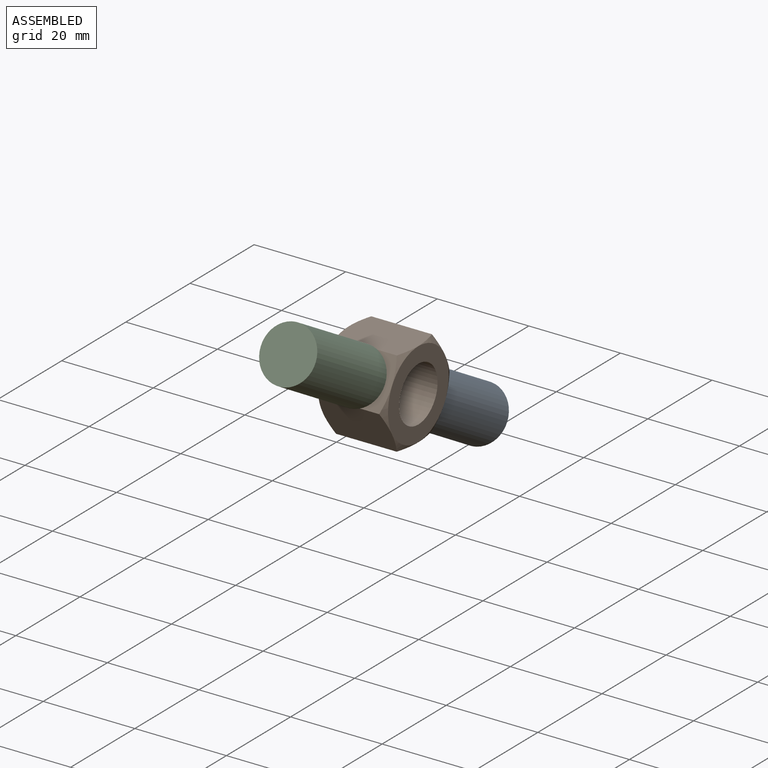
[diagram: assembled view]
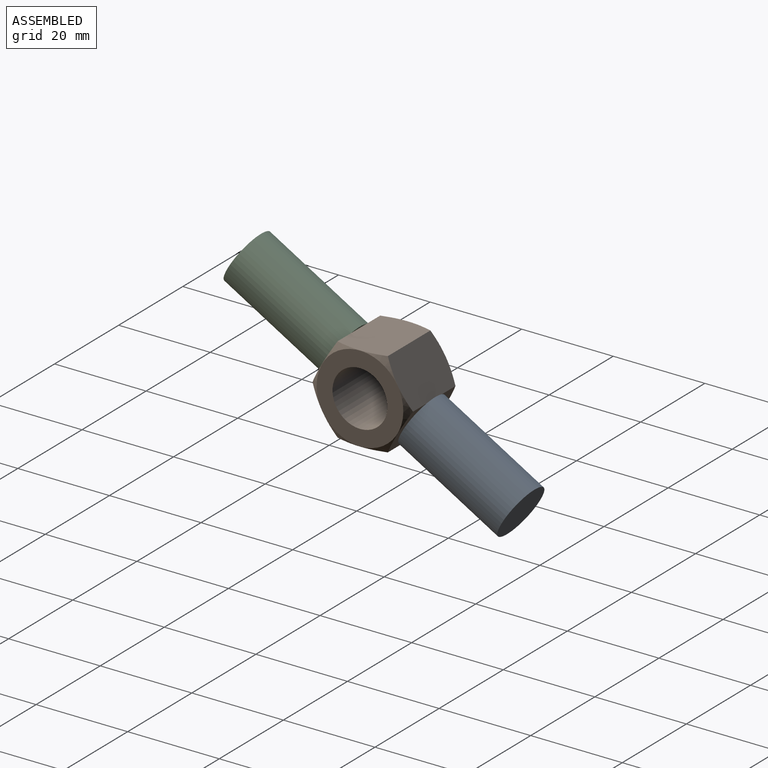
[diagram: assembled view, second angle]
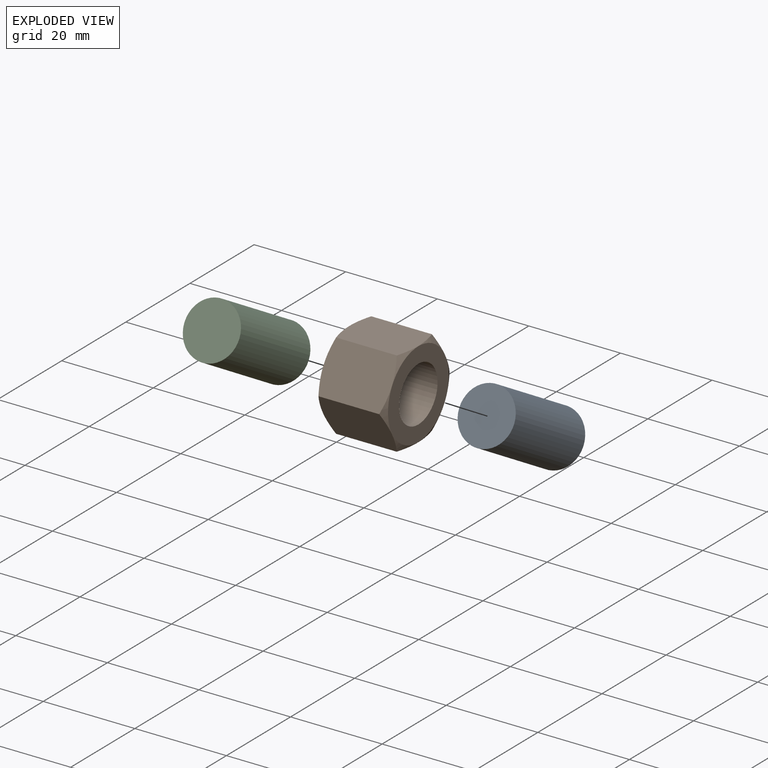
[diagram: exploded view]
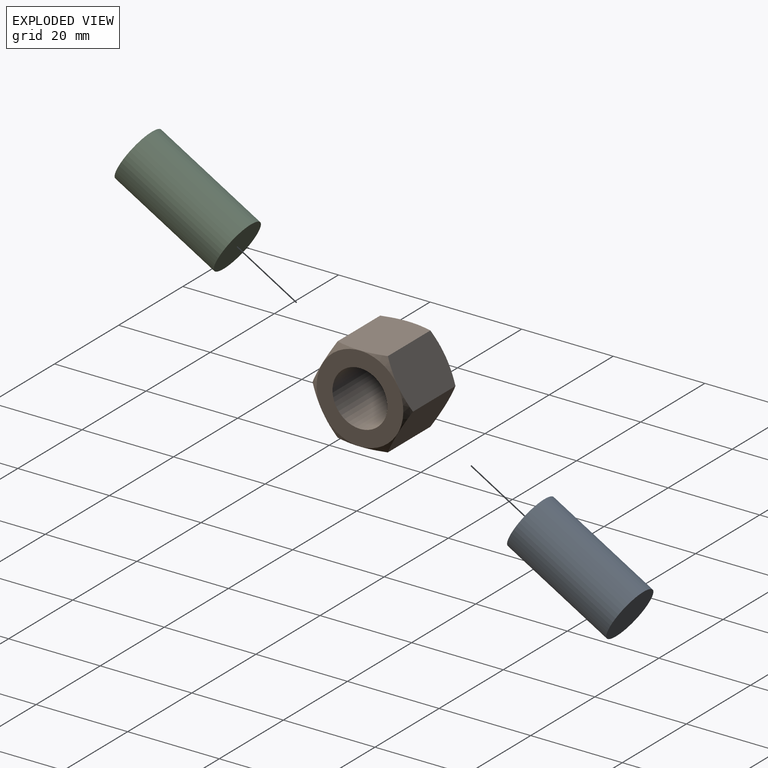
[diagram: exploded view, second angle]
ASSEMBLY  parts=3 mates=2
PART A: 3 faces, bbox 12x12x25 mm
  f0: cylinder r=6mm len=25mm, axis (0,0,-1), area 942.5mm2, adj f1,f2
  f1: plane 12x12mm, normal (0,0,1), area 113.1mm2, adj f0
  f2: plane 12x12mm, normal (0,0,-1), area 113.1mm2, adj f0
PART B: 11 faces, bbox 15x21.9x21.9 mm
  f0: plane 18.94x18.94mm, normal (1,0,0), area 168.6mm2, adj f1,f4
  f1: cylinder r=6mm len=15mm, axis (-1,0,0), area 565.5mm2, adj f0,f2
  f2: plane 18.94x18.94mm, normal (-1,0,0), area 168.6mm2, adj f1,f3
  f3: cone r=9.47mm half-angle=60deg, axis (1,0,0), area 35.7mm2, adj f2,f5,f6,f7,f8,f9,f10
  f4: cone r=9.47mm half-angle=60deg, axis (-1,0,0), area 35.7mm2, adj f0,f5,f6,f7,f8,f9,f10
  f5: plane 14.97x9.5mm, normal (0,-0.87,-0.5), area 157.8mm2, adj f3,f4,f6,f10
  f6: plane 14.97x9.5mm, normal (0,-0.87,0.5), area 157.8mm2, adj f3,f4,f5,f7
  f7: plane 14.97x10.98mm, normal (0,0,1), area 157.8mm2, adj f3,f4,f6,f8
  f8: plane 14.97x9.5mm, normal (0,0.87,0.5), area 157.8mm2, adj f3,f4,f7,f9
  f9: plane 14.97x9.5mm, normal (0,0.87,-0.5), area 157.8mm2, adj f3,f4,f8,f10
  f10: plane 14.97x10.98mm, normal (0,0,-1), area 157.8mm2, adj f3,f4,f5,f9
PART C: same geometry as A
PLACE A rot(axis=(1,0,0),60deg) t=(-1.06,29.11,-17.49)mm
PLACE B t=(-8.56,-0.77,-0.24)mm
PLACE C rot(axis=(-1,0,0),120deg) t=(-1.06,-30.65,17.01)mm
MATE fastened C.f0 <-> B.f6  axis (0,0.87,-0.5) through (-1.06,-9,4.51)mm
MATE fastened A.f0 <-> B.f9  axis (0,-0.87,0.5) through (-1.06,7.46,-4.99)mm
